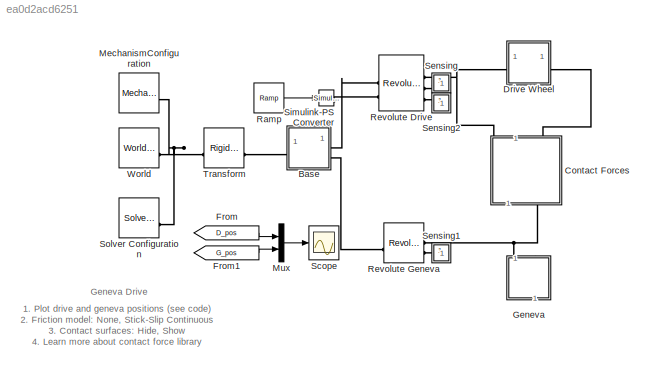
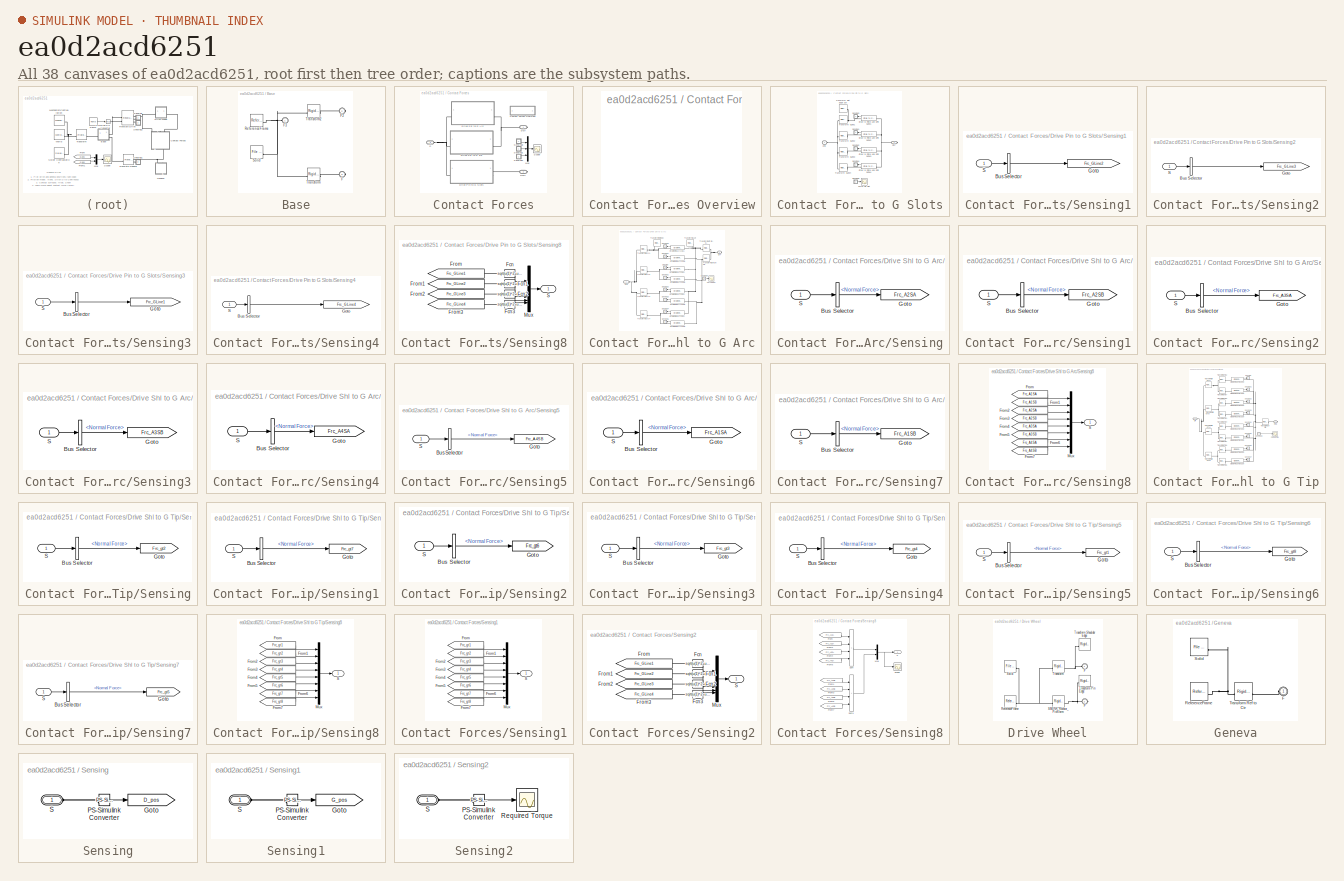
[diagram: thumbnail index - all 38 canvases of the model, root first then tree order]
MODEL slx_ea0d2acd6251
KIND model
CONFIG AbsTol = 1e-5
CONFIG EnableMultiTasking = on
CONFIG FixedStep = auto
CONFIG MaxStep = 1e-2
CONFIG MinStep = auto
CONFIG PostLoadFcn = set_param(bdroot,'IgnoredZcDiagnostic','none')\nwarning off sm:compiler:topologyAnalysis:DanglingBlock
CONFIG RelTol = 1e-4
CONFIG SampleTimeConstraint = Unconstrained
CONFIG SolverName = ode15s
CONFIG StartFcn = tic;
CONFIG StartTime = 0.0
CONFIG StopFcn = Elapsed_Sim_Time = toc;\ndisp(['Elapsed Sim Time = ' num2str(Elapsed_Sim_Time)]);\n
CONFIG StopTime = 30
BLOCK [SubSystem] Base
BLOCK [PMIOPort] Base/F
  Port = 3
  Side = Right
BLOCK [PMIOPort] Base/F2
  Port = 2
  Side = Right
BLOCK [PMIOPort] Base/F3
  Side = Left
BLOCK [Reference] Base/ReferenceFrame  REF=sm_lib/Frames and
Transforms/Reference
Frame
  SourceBlock = sm_lib/Frames and\nTransforms/Reference\nFrame
  SourceType = Reference\nFrame
BLOCK [Reference] Base/Solid  REF=sm_lib/Body Elements/File Solid
  SourceBlock = sm_lib/Body Elements/File Solid
  SourceType = File Solid
BLOCK [Reference] Base/Transform  REF=sm_lib/Frames and
Transforms/Rigid
Transform
  SourceBlock = sm_lib/Frames and\nTransforms/Rigid\nTransform
  SourceType = Rigid\nTransform
BLOCK [Reference] Base/Transform2  REF=sm_lib/Frames and
Transforms/Rigid
Transform
  SourceBlock = sm_lib/Frames and\nTransforms/Rigid\nTransform
  SourceType = Rigid\nTransform
BLOCK [SubSystem] Contact Forces
  NameLocation = right
BLOCK [SubSystem] Contact Forces/Contact Forces Overview
  OpenFcn = web(which('Geneva_Drive_Contact_Forces.html'));
BLOCK [PMIOPort] Contact Forces/Dctr
  NameLocation = top
  Side = Right
BLOCK [PMIOPort] Contact Forces/Dpin
  NameLocation = top
  Port = 2
  Side = Right
BLOCK [SubSystem] Contact Forces/Drive Pin to G Slots
BLOCK [PMIOPort] Contact Forces/Drive Pin to G Slots/CirF
  Port = 2
  Side = Right
BLOCK [Reference] Contact Forces/Drive Pin to G Slots/Circle to Finite Line DPin GLine1  REF=Contact_Forces_Lib/2D/Circle to Finite Line Force
  SourceBlock = Contact_Forces_Lib/2D/Circle to Finite Line Force
  SourceProductName = Simscape Multibody Contact Forces Library
  SourceType = Circle on Finite Line Force
BLOCK [Reference] Contact Forces/Drive Pin to G Slots/Circle to Finite Line DPin GLine2  REF=Contact_Forces_Lib/2D/Circle to Finite Line Force
  SourceBlock = Contact_Forces_Lib/2D/Circle to Finite Line Force
  SourceProductName = Simscape Multibody Contact Forces Library
  SourceType = Circle on Finite Line Force
BLOCK [Reference] Contact Forces/Drive Pin to G Slots/Circle to Finite Line DPin GLine3  REF=Contact_Forces_Lib/2D/Circle to Finite Line Force
  SourceBlock = Contact_Forces_Lib/2D/Circle to Finite Line Force
  SourceProductName = Simscape Multibody Contact Forces Library
  SourceType = Circle on Finite Line Force
BLOCK [Reference] Contact Forces/Drive Pin to G Slots/Circle to Finite Line DPin GLine4  REF=Contact_Forces_Lib/2D/Circle to Finite Line Force
  SourceBlock = Contact_Forces_Lib/2D/Circle to Finite Line Force
  SourceProductName = Simscape Multibody Contact Forces Library
  SourceType = Circle on Finite Line Force
BLOCK [Scope] Contact Forces/Drive Pin to G Slots/Force Pin Slot
  Floating = off
  NumInputPorts = 1
  ScopeSpecificationString = Simulink.scopes.TimeScopeBlockCfg('CurrentConfiguration', extmgr.ConfigurationSet(extmgr.Configuration('Core','General UI',true),extmgr.Configuration('Core','Source UI',true),extmgr.Configuration('Sources','WiredSimulink',true,'DataLoggingSaveFormat','StructureWithTime','DataLoggingDecimation','1','DataLoggingDecimateData',true),extmgr.Configuration('Visuals','Time Domain',true,'SerializedDisplays...<+1576ch>
BLOCK [PMIOPort] Contact Forces/Drive Pin to G Slots/LinB
  Side = Left
BLOCK [SubSystem] Contact Forces/Drive Pin to G Slots/Sensing1
  NameLocation = top
BLOCK [BusSelector] Contact Forces/Drive Pin to G Slots/Sensing1/Bus Selector
  OutputAsBus = on
  OutputSignals = FCir.Fx,FCir.Fy
BLOCK [Goto] Contact Forces/Drive Pin to G Slots/Sensing1/Goto
  GotoTag = Frc_GLine2
  TagVisibility = global
BLOCK [Inport] Contact Forces/Drive Pin to G Slots/Sensing1/S
BLOCK [SubSystem] Contact Forces/Drive Pin to G Slots/Sensing2
  NameLocation = top
BLOCK [BusSelector] Contact Forces/Drive Pin to G Slots/Sensing2/Bus Selector
  OutputAsBus = on
  OutputSignals = FCir.Fx,FCir.Fy
BLOCK [Goto] Contact Forces/Drive Pin to G Slots/Sensing2/Goto
  GotoTag = Frc_GLine3
  TagVisibility = global
BLOCK [Inport] Contact Forces/Drive Pin to G Slots/Sensing2/S
BLOCK [SubSystem] Contact Forces/Drive Pin to G Slots/Sensing3
  NameLocation = top
BLOCK [BusSelector] Contact Forces/Drive Pin to G Slots/Sensing3/Bus Selector
  OutputAsBus = on
  OutputSignals = FCir.Fx,FCir.Fy
BLOCK [Goto] Contact Forces/Drive Pin to G Slots/Sensing3/Goto
  GotoTag = Frc_GLine1
  TagVisibility = global
BLOCK [Inport] Contact Forces/Drive Pin to G Slots/Sensing3/S
BLOCK [SubSystem] Contact Forces/Drive Pin to G Slots/Sensing4
  NameLocation = top
BLOCK [BusSelector] Contact Forces/Drive Pin to G Slots/Sensing4/Bus Selector
  OutputAsBus = on
  OutputSignals = FCir.Fx,FCir.Fy
BLOCK [Goto] Contact Forces/Drive Pin to G Slots/Sensing4/Goto
  GotoTag = Frc_GLine4
  TagVisibility = global
BLOCK [Inport] Contact Forces/Drive Pin to G Slots/Sensing4/S
BLOCK [SubSystem] Contact Forces/Drive Pin to G Slots/Sensing8
BLOCK [Fcn] Contact Forces/Drive Pin to G Slots/Sensing8/Fcn
  Expr = sqrt(u(1)^2+u(2)^2)
BLOCK [Fcn] Contact Forces/Drive Pin to G Slots/Sensing8/Fcn1
  Expr = sqrt(u(1)^2+u(2)^2)
BLOCK [Fcn] Contact Forces/Drive Pin to G Slots/Sensing8/Fcn2
  Expr = sqrt(u(1)^2+u(2)^2)
BLOCK [Fcn] Contact Forces/Drive Pin to G Slots/Sensing8/Fcn3
  Expr = sqrt(u(1)^2+u(2)^2)
BLOCK [From] Contact Forces/Drive Pin to G Slots/Sensing8/From
  GotoTag = Frc_GLine1
  TagVisibility = global
BLOCK [From] Contact Forces/Drive Pin to G Slots/Sensing8/From1
  GotoTag = Frc_GLine2
  TagVisibility = global
BLOCK [From] Contact Forces/Drive Pin to G Slots/Sensing8/From2
  GotoTag = Frc_GLine3
  TagVisibility = global
BLOCK [From] Contact Forces/Drive Pin to G Slots/Sensing8/From3
  GotoTag = Frc_GLine4
  TagVisibility = global
BLOCK [Mux] Contact Forces/Drive Pin to G Slots/Sensing8/Mux
  DisplayOption = bar
BLOCK [Outport] Contact Forces/Drive Pin to G Slots/Sensing8/S
  VectorParamsAs1DForOutWhenUnconnected = off
BLOCK [Reference] Contact Forces/Drive Pin to G Slots/Transform GLine1  REF=sm_lib/Frames and
Transforms/Rigid
Transform
  SourceBlock = sm_lib/Frames and\nTransforms/Rigid\nTransform
  SourceType = Rigid\nTransform
BLOCK [Reference] Contact Forces/Drive Pin to G Slots/Transform GLine2  REF=sm_lib/Frames and
Transforms/Rigid
Transform
  SourceBlock = sm_lib/Frames and\nTransforms/Rigid\nTransform
  SourceType = Rigid\nTransform
BLOCK [Reference] Contact Forces/Drive Pin to G Slots/Transform GLine3  REF=sm_lib/Frames and
Transforms/Rigid
Transform
  SourceBlock = sm_lib/Frames and\nTransforms/Rigid\nTransform
  SourceType = Rigid\nTransform
BLOCK [Reference] Contact Forces/Drive Pin to G Slots/Transform GLine4  REF=sm_lib/Frames and
Transforms/Rigid
Transform
  SourceBlock = sm_lib/Frames and\nTransforms/Rigid\nTransform
  SourceType = Rigid\nTransform
BLOCK [Reference] Contact Forces/Drive Pin to G Slots/Transform Slot Edge SW  REF=sm_lib/Frames and
Transforms/Rigid
Transform
  NameLocation = top
  SourceBlock = sm_lib/Frames and\nTransforms/Rigid\nTransform
  SourceType = Rigid\nTransform
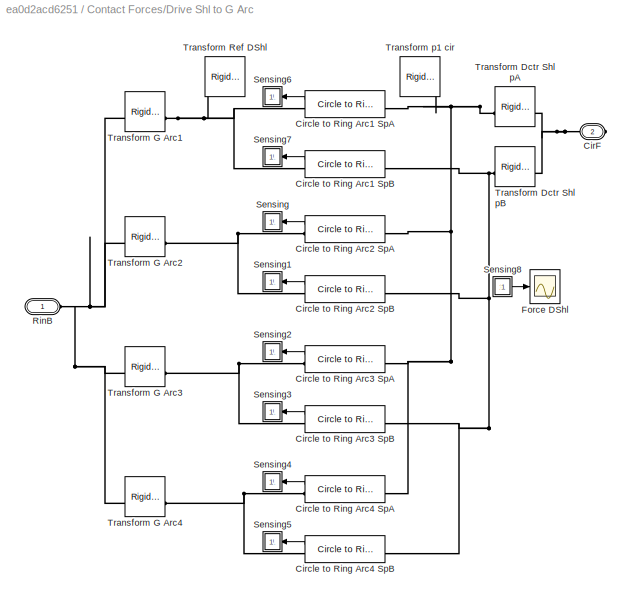
BLOCK [SubSystem] Contact Forces/Drive Shl to G Arc
BLOCK [PMIOPort] Contact Forces/Drive Shl to G Arc/CirF
  NameLocation = top
  Port = 2
  Side = Right
BLOCK [Reference] Contact Forces/Drive Shl to G Arc/Circle to Ring Arc1 SpA   REF=Contact_Forces_Lib/2D/Circle to Ring Force
  SourceBlock = Contact_Forces_Lib/2D/Circle to Ring Force
  SourceProductName = Simscape Multibody Contact Forces Library
  SourceType = Circle to Ring Force
BLOCK [Reference] Contact Forces/Drive Shl to G Arc/Circle to Ring Arc1 SpB  REF=Contact_Forces_Lib/2D/Circle to Ring Force
  SourceBlock = Contact_Forces_Lib/2D/Circle to Ring Force
  SourceProductName = Simscape Multibody Contact Forces Library
  SourceType = Circle to Ring Force
BLOCK [Reference] Contact Forces/Drive Shl to G Arc/Circle to Ring Arc2 SpA  REF=Contact_Forces_Lib/2D/Circle to Ring Force
  SourceBlock = Contact_Forces_Lib/2D/Circle to Ring Force
  SourceProductName = Simscape Multibody Contact Forces Library
  SourceType = Circle to Ring Force
BLOCK [Reference] Contact Forces/Drive Shl to G Arc/Circle to Ring Arc2 SpB  REF=Contact_Forces_Lib/2D/Circle to Ring Force
  SourceBlock = Contact_Forces_Lib/2D/Circle to Ring Force
  SourceProductName = Simscape Multibody Contact Forces Library
  SourceType = Circle to Ring Force
BLOCK [Reference] Contact Forces/Drive Shl to G Arc/Circle to Ring Arc3 SpA  REF=Contact_Forces_Lib/2D/Circle to Ring Force
  SourceBlock = Contact_Forces_Lib/2D/Circle to Ring Force
  SourceProductName = Simscape Multibody Contact Forces Library
  SourceType = Circle to Ring Force
BLOCK [Reference] Contact Forces/Drive Shl to G Arc/Circle to Ring Arc3 SpB  REF=Contact_Forces_Lib/2D/Circle to Ring Force
  SourceBlock = Contact_Forces_Lib/2D/Circle to Ring Force
  SourceProductName = Simscape Multibody Contact Forces Library
  SourceType = Circle to Ring Force
BLOCK [Reference] Contact Forces/Drive Shl to G Arc/Circle to Ring Arc4 SpA  REF=Contact_Forces_Lib/2D/Circle to Ring Force
  SourceBlock = Contact_Forces_Lib/2D/Circle to Ring Force
  SourceProductName = Simscape Multibody Contact Forces Library
  SourceType = Circle to Ring Force
BLOCK [Reference] Contact Forces/Drive Shl to G Arc/Circle to Ring Arc4 SpB  REF=Contact_Forces_Lib/2D/Circle to Ring Force
  SourceBlock = Contact_Forces_Lib/2D/Circle to Ring Force
  SourceProductName = Simscape Multibody Contact Forces Library
  SourceType = Circle to Ring Force
BLOCK [Scope] Contact Forces/Drive Shl to G Arc/Force DShl
  Floating = off
  NumInputPorts = 1
  ScopeSpecificationString = Simulink.scopes.TimeScopeBlockCfg('CurrentConfiguration', extmgr.ConfigurationSet(extmgr.Configuration('Core','General UI',true),extmgr.Configuration('Core','Source UI',true),extmgr.Configuration('Sources','WiredSimulink',true,'DataLoggingVariableName','ScopeData4','DataLoggingSaveFormat','StructureWithTime','DataLoggingDecimation','1','DataLoggingDecimateData',true),extmgr.Configuration('Visuals'...<+1666ch>
BLOCK [PMIOPort] Contact Forces/Drive Shl to G Arc/RinB
  Side = Left
BLOCK [SubSystem] Contact Forces/Drive Shl to G Arc/Sensing
  NameLocation = top
BLOCK [BusSelector] Contact Forces/Drive Shl to G Arc/Sensing/Bus Selector
  OutputSignals = Normal Force
BLOCK [Goto] Contact Forces/Drive Shl to G Arc/Sensing/Goto
  GotoTag = Frc_A2SA
  TagVisibility = global
BLOCK [Inport] Contact Forces/Drive Shl to G Arc/Sensing/S
BLOCK [SubSystem] Contact Forces/Drive Shl to G Arc/Sensing1
  NameLocation = top
BLOCK [BusSelector] Contact Forces/Drive Shl to G Arc/Sensing1/Bus Selector
  OutputSignals = Normal Force
BLOCK [Goto] Contact Forces/Drive Shl to G Arc/Sensing1/Goto
  GotoTag = Frc_A2SB
  TagVisibility = global
BLOCK [Inport] Contact Forces/Drive Shl to G Arc/Sensing1/S
BLOCK [SubSystem] Contact Forces/Drive Shl to G Arc/Sensing2
  NameLocation = top
BLOCK [BusSelector] Contact Forces/Drive Shl to G Arc/Sensing2/Bus Selector
  OutputSignals = Normal Force
BLOCK [Goto] Contact Forces/Drive Shl to G Arc/Sensing2/Goto
  GotoTag = Frc_A3SA
  TagVisibility = global
BLOCK [Inport] Contact Forces/Drive Shl to G Arc/Sensing2/S
BLOCK [SubSystem] Contact Forces/Drive Shl to G Arc/Sensing3
  NameLocation = top
BLOCK [BusSelector] Contact Forces/Drive Shl to G Arc/Sensing3/Bus Selector
  OutputSignals = Normal Force
BLOCK [Goto] Contact Forces/Drive Shl to G Arc/Sensing3/Goto
  GotoTag = Frc_A3SB
  TagVisibility = global
BLOCK [Inport] Contact Forces/Drive Shl to G Arc/Sensing3/S
BLOCK [SubSystem] Contact Forces/Drive Shl to G Arc/Sensing4
  NameLocation = top
BLOCK [BusSelector] Contact Forces/Drive Shl to G Arc/Sensing4/Bus Selector
  OutputSignals = Normal Force
BLOCK [Goto] Contact Forces/Drive Shl to G Arc/Sensing4/Goto
  GotoTag = Frc_A4SA
  TagVisibility = global
BLOCK [Inport] Contact Forces/Drive Shl to G Arc/Sensing4/S
BLOCK [SubSystem] Contact Forces/Drive Shl to G Arc/Sensing5
  NameLocation = top
BLOCK [BusSelector] Contact Forces/Drive Shl to G Arc/Sensing5/Bus Selector
  OutputSignals = Normal Force
BLOCK [Goto] Contact Forces/Drive Shl to G Arc/Sensing5/Goto
  GotoTag = Frc_A4SB
  TagVisibility = global
BLOCK [Inport] Contact Forces/Drive Shl to G Arc/Sensing5/S
BLOCK [SubSystem] Contact Forces/Drive Shl to G Arc/Sensing6
  NameLocation = top
BLOCK [BusSelector] Contact Forces/Drive Shl to G Arc/Sensing6/Bus Selector
  OutputSignals = Normal Force
BLOCK [Goto] Contact Forces/Drive Shl to G Arc/Sensing6/Goto
  GotoTag = Frc_A1SA
  TagVisibility = global
BLOCK [Inport] Contact Forces/Drive Shl to G Arc/Sensing6/S
BLOCK [SubSystem] Contact Forces/Drive Shl to G Arc/Sensing7
  NameLocation = top
BLOCK [BusSelector] Contact Forces/Drive Shl to G Arc/Sensing7/Bus Selector
  OutputSignals = Normal Force
BLOCK [Goto] Contact Forces/Drive Shl to G Arc/Sensing7/Goto
  GotoTag = Frc_A1SB
  TagVisibility = global
BLOCK [Inport] Contact Forces/Drive Shl to G Arc/Sensing7/S
BLOCK [SubSystem] Contact Forces/Drive Shl to G Arc/Sensing8
BLOCK [From] Contact Forces/Drive Shl to G Arc/Sensing8/From
  GotoTag = Frc_A1SA
  TagVisibility = global
BLOCK [From] Contact Forces/Drive Shl to G Arc/Sensing8/From1
  GotoTag = Frc_A1SB
  TagVisibility = global
BLOCK [From] Contact Forces/Drive Shl to G Arc/Sensing8/From2
  GotoTag = Frc_A2SA
  TagVisibility = global
BLOCK [From] Contact Forces/Drive Shl to G Arc/Sensing8/From3
  GotoTag = Frc_A2SB
  TagVisibility = global
BLOCK [From] Contact Forces/Drive Shl to G Arc/Sensing8/From4
  GotoTag = Frc_A3SA
  TagVisibility = global
BLOCK [From] Contact Forces/Drive Shl to G Arc/Sensing8/From5
  GotoTag = Frc_A3SB
  TagVisibility = global
BLOCK [From] Contact Forces/Drive Shl to G Arc/Sensing8/From6
  GotoTag = Frc_A4SA
  TagVisibility = global
BLOCK [From] Contact Forces/Drive Shl to G Arc/Sensing8/From7
  GotoTag = Frc_A4SB
  TagVisibility = global
BLOCK [Mux] Contact Forces/Drive Shl to G Arc/Sensing8/Mux
  DisplayOption = bar
  Inputs = 8
BLOCK [Outport] Contact Forces/Drive Shl to G Arc/Sensing8/S
  VectorParamsAs1DForOutWhenUnconnected = off
BLOCK [Reference] Contact Forces/Drive Shl to G Arc/Transform Dctr Shl pA  REF=sm_lib/Frames and
Transforms/Rigid
Transform
  NameLocation = top
  SourceBlock = sm_lib/Frames and\nTransforms/Rigid\nTransform
  SourceType = Rigid\nTransform
BLOCK [Reference] Contact Forces/Drive Shl to G Arc/Transform Dctr Shl pB  REF=sm_lib/Frames and
Transforms/Rigid
Transform
  SourceBlock = sm_lib/Frames and\nTransforms/Rigid\nTransform
  SourceType = Rigid\nTransform
BLOCK [Reference] Contact Forces/Drive Shl to G Arc/Transform G Arc1  REF=sm_lib/Frames and
Transforms/Rigid
Transform
  SourceBlock = sm_lib/Frames and\nTransforms/Rigid\nTransform
  SourceType = Rigid\nTransform
BLOCK [Reference] Contact Forces/Drive Shl to G Arc/Transform G Arc2  REF=sm_lib/Frames and
Transforms/Rigid
Transform
  SourceBlock = sm_lib/Frames and\nTransforms/Rigid\nTransform
  SourceType = Rigid\nTransform
BLOCK [Reference] Contact Forces/Drive Shl to G Arc/Transform G Arc3  REF=sm_lib/Frames and
Transforms/Rigid
Transform
  SourceBlock = sm_lib/Frames and\nTransforms/Rigid\nTransform
  SourceType = Rigid\nTransform
BLOCK [Reference] Contact Forces/Drive Shl to G Arc/Transform G Arc4  REF=sm_lib/Frames and
Transforms/Rigid
Transform
  SourceBlock = sm_lib/Frames and\nTransforms/Rigid\nTransform
  SourceType = Rigid\nTransform
BLOCK [Reference] Contact Forces/Drive Shl to G Arc/Transform Ref DShl  REF=sm_lib/Frames and
Transforms/Rigid
Transform
  NameLocation = top
  SourceBlock = sm_lib/Frames and\nTransforms/Rigid\nTransform
  SourceType = Rigid\nTransform
BLOCK [Reference] Contact Forces/Drive Shl to G Arc/Transform p1 cir  REF=sm_lib/Frames and
Transforms/Rigid
Transform
  NameLocation = top
  SourceBlock = sm_lib/Frames and\nTransforms/Rigid\nTransform
  SourceType = Rigid\nTransform
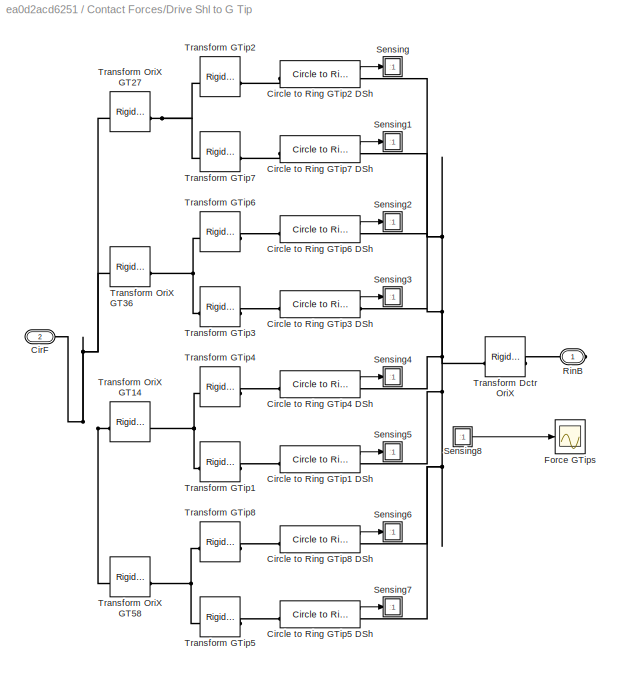
BLOCK [SubSystem] Contact Forces/Drive Shl to G Tip
BLOCK [PMIOPort] Contact Forces/Drive Shl to G Tip/CirF
  Port = 2
  Side = Left
BLOCK [Reference] Contact Forces/Drive Shl to G Tip/Circle to Ring GTip1 DSh  REF=Contact_Forces_Lib/2D/Circle to Ring Force
  SourceBlock = Contact_Forces_Lib/2D/Circle to Ring Force
  SourceProductName = Simscape Multibody Contact Forces Library
  SourceType = Circle to Ring Force
BLOCK [Reference] Contact Forces/Drive Shl to G Tip/Circle to Ring GTip2 DSh  REF=Contact_Forces_Lib/2D/Circle to Ring Force
  SourceBlock = Contact_Forces_Lib/2D/Circle to Ring Force
  SourceProductName = Simscape Multibody Contact Forces Library
  SourceType = Circle to Ring Force
BLOCK [Reference] Contact Forces/Drive Shl to G Tip/Circle to Ring GTip3 DSh  REF=Contact_Forces_Lib/2D/Circle to Ring Force
  SourceBlock = Contact_Forces_Lib/2D/Circle to Ring Force
  SourceProductName = Simscape Multibody Contact Forces Library
  SourceType = Circle to Ring Force
BLOCK [Reference] Contact Forces/Drive Shl to G Tip/Circle to Ring GTip4 DSh  REF=Contact_Forces_Lib/2D/Circle to Ring Force
  SourceBlock = Contact_Forces_Lib/2D/Circle to Ring Force
  SourceProductName = Simscape Multibody Contact Forces Library
  SourceType = Circle to Ring Force
BLOCK [Reference] Contact Forces/Drive Shl to G Tip/Circle to Ring GTip5 DSh  REF=Contact_Forces_Lib/2D/Circle to Ring Force
  SourceBlock = Contact_Forces_Lib/2D/Circle to Ring Force
  SourceProductName = Simscape Multibody Contact Forces Library
  SourceType = Circle to Ring Force
BLOCK [Reference] Contact Forces/Drive Shl to G Tip/Circle to Ring GTip6 DSh  REF=Contact_Forces_Lib/2D/Circle to Ring Force
  SourceBlock = Contact_Forces_Lib/2D/Circle to Ring Force
  SourceProductName = Simscape Multibody Contact Forces Library
  SourceType = Circle to Ring Force
BLOCK [Reference] Contact Forces/Drive Shl to G Tip/Circle to Ring GTip7 DSh  REF=Contact_Forces_Lib/2D/Circle to Ring Force
  SourceBlock = Contact_Forces_Lib/2D/Circle to Ring Force
  SourceProductName = Simscape Multibody Contact Forces Library
  SourceType = Circle to Ring Force
BLOCK [Reference] Contact Forces/Drive Shl to G Tip/Circle to Ring GTip8 DSh  REF=Contact_Forces_Lib/2D/Circle to Ring Force
  SourceBlock = Contact_Forces_Lib/2D/Circle to Ring Force
  SourceProductName = Simscape Multibody Contact Forces Library
  SourceType = Circle to Ring Force
BLOCK [Scope] Contact Forces/Drive Shl to G Tip/Force GTips
  Floating = off
  NumInputPorts = 1
  ScopeSpecificationString = Simulink.scopes.TimeScopeBlockCfg('CurrentConfiguration', extmgr.ConfigurationSet(extmgr.Configuration('Core','General UI',true),extmgr.Configuration('Core','Source UI',true),extmgr.Configuration('Sources','WiredSimulink',true,'DataLoggingVariableName','ScopeData2','DataLoggingSaveFormat','StructureWithTime','DataLoggingDecimation','1','DataLoggingDecimateData',true),extmgr.Configuration('Visuals'...<+1666ch>
BLOCK [PMIOPort] Contact Forces/Drive Shl to G Tip/RinB
  Side = Right
BLOCK [SubSystem] Contact Forces/Drive Shl to G Tip/Sensing
BLOCK [BusSelector] Contact Forces/Drive Shl to G Tip/Sensing/Bus Selector
  OutputSignals = Normal Force
BLOCK [Goto] Contact Forces/Drive Shl to G Tip/Sensing/Goto
  GotoTag = Frc_gt2
  TagVisibility = global
BLOCK [Inport] Contact Forces/Drive Shl to G Tip/Sensing/S
BLOCK [SubSystem] Contact Forces/Drive Shl to G Tip/Sensing1
BLOCK [BusSelector] Contact Forces/Drive Shl to G Tip/Sensing1/Bus Selector
  OutputSignals = Normal Force
BLOCK [Goto] Contact Forces/Drive Shl to G Tip/Sensing1/Goto
  GotoTag = Frc_gt7
  TagVisibility = global
BLOCK [Inport] Contact Forces/Drive Shl to G Tip/Sensing1/S
BLOCK [SubSystem] Contact Forces/Drive Shl to G Tip/Sensing2
BLOCK [BusSelector] Contact Forces/Drive Shl to G Tip/Sensing2/Bus Selector
  OutputSignals = Normal Force
BLOCK [Goto] Contact Forces/Drive Shl to G Tip/Sensing2/Goto
  GotoTag = Frc_gt6
  TagVisibility = global
BLOCK [Inport] Contact Forces/Drive Shl to G Tip/Sensing2/S
BLOCK [SubSystem] Contact Forces/Drive Shl to G Tip/Sensing3
BLOCK [BusSelector] Contact Forces/Drive Shl to G Tip/Sensing3/Bus Selector
  OutputSignals = Normal Force
BLOCK [Goto] Contact Forces/Drive Shl to G Tip/Sensing3/Goto
  GotoTag = Frc_gt3
  TagVisibility = global
BLOCK [Inport] Contact Forces/Drive Shl to G Tip/Sensing3/S
BLOCK [SubSystem] Contact Forces/Drive Shl to G Tip/Sensing4
BLOCK [BusSelector] Contact Forces/Drive Shl to G Tip/Sensing4/Bus Selector
  OutputSignals = Normal Force
BLOCK [Goto] Contact Forces/Drive Shl to G Tip/Sensing4/Goto
  GotoTag = Frc_gt4
  TagVisibility = global
BLOCK [Inport] Contact Forces/Drive Shl to G Tip/Sensing4/S
BLOCK [SubSystem] Contact Forces/Drive Shl to G Tip/Sensing5
BLOCK [BusSelector] Contact Forces/Drive Shl to G Tip/Sensing5/Bus Selector
  OutputSignals = Normal Force
BLOCK [Goto] Contact Forces/Drive Shl to G Tip/Sensing5/Goto
  GotoTag = Frc_gt1
  TagVisibility = global
BLOCK [Inport] Contact Forces/Drive Shl to G Tip/Sensing5/S
BLOCK [SubSystem] Contact Forces/Drive Shl to G Tip/Sensing6
BLOCK [BusSelector] Contact Forces/Drive Shl to G Tip/Sensing6/Bus Selector
  OutputSignals = Normal Force
BLOCK [Goto] Contact Forces/Drive Shl to G Tip/Sensing6/Goto
  GotoTag = Frc_gt8
  TagVisibility = global
BLOCK [Inport] Contact Forces/Drive Shl to G Tip/Sensing6/S
BLOCK [SubSystem] Contact Forces/Drive Shl to G Tip/Sensing7
BLOCK [BusSelector] Contact Forces/Drive Shl to G Tip/Sensing7/Bus Selector
  OutputSignals = Normal Force
BLOCK [Goto] Contact Forces/Drive Shl to G Tip/Sensing7/Goto
  GotoTag = Frc_gt5
  TagVisibility = global
BLOCK [Inport] Contact Forces/Drive Shl to G Tip/Sensing7/S
BLOCK [SubSystem] Contact Forces/Drive Shl to G Tip/Sensing8
BLOCK [From] Contact Forces/Drive Shl to G Tip/Sensing8/From
  GotoTag = Frc_gt1
  TagVisibility = global
BLOCK [From] Contact Forces/Drive Shl to G Tip/Sensing8/From1
  GotoTag = Frc_gt2
  TagVisibility = global
BLOCK [From] Contact Forces/Drive Shl to G Tip/Sensing8/From2
  GotoTag = Frc_gt3
  TagVisibility = global
BLOCK [From] Contact Forces/Drive Shl to G Tip/Sensing8/From3
  GotoTag = Frc_gt4
  TagVisibility = global
BLOCK [From] Contact Forces/Drive Shl to G Tip/Sensing8/From4
  GotoTag = Frc_gt5
  TagVisibility = global
BLOCK [From] Contact Forces/Drive Shl to G Tip/Sensing8/From5
  GotoTag = Frc_gt6
  TagVisibility = global
BLOCK [From] Contact Forces/Drive Shl to G Tip/Sensing8/From6
  GotoTag = Frc_gt7
  TagVisibility = global
BLOCK [From] Contact Forces/Drive Shl to G Tip/Sensing8/From7
  GotoTag = Frc_gt8
  TagVisibility = global
BLOCK [Mux] Contact Forces/Drive Shl to G Tip/Sensing8/Mux
  DisplayOption = bar
  Inputs = 8
BLOCK [Outport] Contact Forces/Drive Shl to G Tip/Sensing8/S
  VectorParamsAs1DForOutWhenUnconnected = off
BLOCK [Reference] Contact Forces/Drive Shl to G Tip/Transform Dctr OriX  REF=sm_lib/Frames and
Transforms/Rigid
Transform
  SourceBlock = sm_lib/Frames and\nTransforms/Rigid\nTransform
  SourceType = Rigid\nTransform
BLOCK [Reference] Contact Forces/Drive Shl to G Tip/Transform GTip1  REF=sm_lib/Frames and
Transforms/Rigid
Transform
  SourceBlock = sm_lib/Frames and\nTransforms/Rigid\nTransform
  SourceType = Rigid\nTransform
BLOCK [Reference] Contact Forces/Drive Shl to G Tip/Transform GTip2  REF=sm_lib/Frames and
Transforms/Rigid
Transform
  SourceBlock = sm_lib/Frames and\nTransforms/Rigid\nTransform
  SourceType = Rigid\nTransform
BLOCK [Reference] Contact Forces/Drive Shl to G Tip/Transform GTip3  REF=sm_lib/Frames and
Transforms/Rigid
Transform
  SourceBlock = sm_lib/Frames and\nTransforms/Rigid\nTransform
  SourceType = Rigid\nTransform
BLOCK [Reference] Contact Forces/Drive Shl to G Tip/Transform GTip4  REF=sm_lib/Frames and
Transforms/Rigid
Transform
  SourceBlock = sm_lib/Frames and\nTransforms/Rigid\nTransform
  SourceType = Rigid\nTransform
BLOCK [Reference] Contact Forces/Drive Shl to G Tip/Transform GTip5  REF=sm_lib/Frames and
Transforms/Rigid
Transform
  SourceBlock = sm_lib/Frames and\nTransforms/Rigid\nTransform
  SourceType = Rigid\nTransform
BLOCK [Reference] Contact Forces/Drive Shl to G Tip/Transform GTip6  REF=sm_lib/Frames and
Transforms/Rigid
Transform
  SourceBlock = sm_lib/Frames and\nTransforms/Rigid\nTransform
  SourceType = Rigid\nTransform
BLOCK [Reference] Contact Forces/Drive Shl to G Tip/Transform GTip7  REF=sm_lib/Frames and
Transforms/Rigid
Transform
  SourceBlock = sm_lib/Frames and\nTransforms/Rigid\nTransform
  SourceType = Rigid\nTransform
BLOCK [Reference] Contact Forces/Drive Shl to G Tip/Transform GTip8  REF=sm_lib/Frames and
Transforms/Rigid
Transform
  SourceBlock = sm_lib/Frames and\nTransforms/Rigid\nTransform
  SourceType = Rigid\nTransform
BLOCK [Reference] Contact Forces/Drive Shl to G Tip/Transform OriX GT14  REF=sm_lib/Frames and
Transforms/Rigid
Transform
  SourceBlock = sm_lib/Frames and\nTransforms/Rigid\nTransform
  SourceType = Rigid\nTransform
BLOCK [Reference] Contact Forces/Drive Shl to G Tip/Transform OriX GT27  REF=sm_lib/Frames and
Transforms/Rigid
Transform
  SourceBlock = sm_lib/Frames and\nTransforms/Rigid\nTransform
  SourceType = Rigid\nTransform
BLOCK [Reference] Contact Forces/Drive Shl to G Tip/Transform OriX GT36  REF=sm_lib/Frames and
Transforms/Rigid
Transform
  SourceBlock = sm_lib/Frames and\nTransforms/Rigid\nTransform
  SourceType = Rigid\nTransform
BLOCK [Reference] Contact Forces/Drive Shl to G Tip/Transform OriX GT58  REF=sm_lib/Frames and
Transforms/Rigid
Transform
  SourceBlock = sm_lib/Frames and\nTransforms/Rigid\nTransform
  SourceType = Rigid\nTransform
BLOCK [PMIOPort] Contact Forces/G
  Port = 3
  Side = Left
BLOCK [Mux] Contact Forces/Mux
  DisplayOption = bar
  Inputs = 3
BLOCK [Scope] Contact Forces/Scope
  Floating = off
  NumInputPorts = 1
  ScopeSpecificationString = Simulink.scopes.TimeScopeBlockCfg('CurrentConfiguration', extmgr.ConfigurationSet(extmgr.Configuration('Core','General UI',true),extmgr.Configuration('Core','Source UI',true),extmgr.Configuration('Sources','WiredSimulink',true,'DataLoggingVariableName','ScopeData5','DataLoggingSaveFormat','StructureWithTime','DataLoggingDecimation','1','DataLoggingDecimateData',true),extmgr.Configuration('Visuals'...<+1694ch>
BLOCK [SubSystem] Contact Forces/Sensing1
BLOCK [From] Contact Forces/Sensing1/From
  GotoTag = Frc_gt1
  TagVisibility = global
BLOCK [From] Contact Forces/Sensing1/From1
  GotoTag = Frc_gt2
  TagVisibility = global
BLOCK [From] Contact Forces/Sensing1/From2
  GotoTag = Frc_gt3
  TagVisibility = global
BLOCK [From] Contact Forces/Sensing1/From3
  GotoTag = Frc_gt4
  TagVisibility = global
BLOCK [From] Contact Forces/Sensing1/From4
  GotoTag = Frc_gt5
  TagVisibility = global
BLOCK [From] Contact Forces/Sensing1/From5
  GotoTag = Frc_gt6
  TagVisibility = global
BLOCK [From] Contact Forces/Sensing1/From6
  GotoTag = Frc_gt7
  TagVisibility = global
BLOCK [From] Contact Forces/Sensing1/From7
  GotoTag = Frc_gt8
  TagVisibility = global
BLOCK [Mux] Contact Forces/Sensing1/Mux
  DisplayOption = bar
  Inputs = 8
BLOCK [Outport] Contact Forces/Sensing1/S
  VectorParamsAs1DForOutWhenUnconnected = off
BLOCK [SubSystem] Contact Forces/Sensing2
BLOCK [Fcn] Contact Forces/Sensing2/Fcn
  Expr = sqrt(u(1)^2+u(2)^2)
BLOCK [Fcn] Contact Forces/Sensing2/Fcn1
  Expr = sqrt(u(1)^2+u(2)^2)
BLOCK [Fcn] Contact Forces/Sensing2/Fcn2
  Expr = sqrt(u(1)^2+u(2)^2)
BLOCK [Fcn] Contact Forces/Sensing2/Fcn3
  Expr = sqrt(u(1)^2+u(2)^2)
BLOCK [From] Contact Forces/Sensing2/From
  GotoTag = Frc_GLine1
  TagVisibility = global
BLOCK [From] Contact Forces/Sensing2/From1
  GotoTag = Frc_GLine2
  TagVisibility = global
BLOCK [From] Contact Forces/Sensing2/From2
  GotoTag = Frc_GLine3
  TagVisibility = global
BLOCK [From] Contact Forces/Sensing2/From3
  GotoTag = Frc_GLine4
  TagVisibility = global
BLOCK [Mux] Contact Forces/Sensing2/Mux
  DisplayOption = bar
BLOCK [Outport] Contact Forces/Sensing2/S
  VectorParamsAs1DForOutWhenUnconnected = off
BLOCK [SubSystem] Contact Forces/Sensing8
BLOCK [From] Contact Forces/Sensing8/From
  GotoTag = Frc_A1SA
  TagVisibility = global
BLOCK [From] Contact Forces/Sensing8/From1
  GotoTag = Frc_A1SB
  TagVisibility = global
BLOCK [From] Contact Forces/Sensing8/From2
  GotoTag = Frc_A2SA
  TagVisibility = global
BLOCK [From] Contact Forces/Sensing8/From3
  GotoTag = Frc_A2SB
  TagVisibility = global
BLOCK [From] Contact Forces/Sensing8/From4
  GotoTag = Frc_A3SA
  TagVisibility = global
BLOCK [From] Contact Forces/Sensing8/From5
  GotoTag = Frc_A3SB
  TagVisibility = global
BLOCK [From] Contact Forces/Sensing8/From6
  GotoTag = Frc_A4SA
  TagVisibility = global
BLOCK [From] Contact Forces/Sensing8/From7
  GotoTag = Frc_A4SB
  TagVisibility = global
BLOCK [Mux] Contact Forces/Sensing8/Mux
  DisplayOption = bar
  Inputs = 2
BLOCK [Outport] Contact Forces/Sensing8/S
  VectorParamsAs1DForOutWhenUnconnected = off
BLOCK [Scope] Contact Forces/Sensing8/Scope
  Floating = off
  NumInputPorts = 1
  ScopeSpecificationString = Simulink.scopes.TimeScopeBlockCfg('CurrentConfiguration', extmgr.ConfigurationSet(extmgr.Configuration('Core','General UI',true),extmgr.Configuration('Core','Source UI',true),extmgr.Configuration('Sources','WiredSimulink',true,'DataLoggingVariableName','ScopeData6','DataLoggingSaveFormat','Array','DataLoggingDecimation','1','DataLoggingDecimateData',true),extmgr.Configuration('Visuals','Time Domai...<+1656ch>
BLOCK [Sum] Contact Forces/Sensing8/Sum
  IconShape = rectangular
  Inputs = ++++
BLOCK [Sum] Contact Forces/Sensing8/Sum1
  IconShape = rectangular
  Inputs = ++++
BLOCK [SubSystem] Drive Wheel
  Tag = CustomStyle
BLOCK [PMIOPort] Drive Wheel/F
  Side = Left
BLOCK [PMIOPort] Drive Wheel/P
  Port = 2
  Side = Right
BLOCK [Reference] Drive Wheel/ReferenceFrame  REF=sm_lib/Frames and
Transforms/Reference
Frame
  SourceBlock = sm_lib/Frames and\nTransforms/Reference\nFrame
  SourceType = Reference\nFrame
BLOCK [Reference] Drive Wheel/SMLINK_Rotator_PinXform  REF=sm_lib/Frames and
Transforms/Rigid
Transform
  SourceBlock = sm_lib/Frames and\nTransforms/Rigid\nTransform
  SourceType = Rigid\nTransform
BLOCK [Reference] Drive Wheel/Solid  REF=sm_lib/Body Elements/File Solid
  SourceBlock = sm_lib/Body Elements/File Solid
  SourceType = File Solid
BLOCK [Reference] Drive Wheel/Transform  REF=sm_lib/Frames and
Transforms/Rigid
Transform
  SourceBlock = sm_lib/Frames and\nTransforms/Rigid\nTransform
  SourceType = Rigid\nTransform
BLOCK [Reference] Drive Wheel/Transform Pin Edge  REF=sm_lib/Frames and
Transforms/Rigid
Transform
  SourceBlock = sm_lib/Frames and\nTransforms/Rigid\nTransform
  SourceType = Rigid\nTransform
BLOCK [Reference] Drive Wheel/Transform Shoulder Edge  REF=sm_lib/Frames and
Transforms/Rigid
Transform
  SourceBlock = sm_lib/Frames and\nTransforms/Rigid\nTransform
  SourceType = Rigid\nTransform
BLOCK [From] From
  GotoTag = D_pos
  Tag = CustomStyle
  TagVisibility = global
BLOCK [From] From1
  GotoTag = G_pos
  Tag = CustomStyle
  TagVisibility = global
BLOCK [SubSystem] Geneva
  NameLocation = right
  Tag = CustomStyle
BLOCK [PMIOPort] Geneva/F
  Side = Left
BLOCK [Reference] Geneva/ReferenceFrame  REF=sm_lib/Frames and
Transforms/Reference
Frame
  SourceBlock = sm_lib/Frames and\nTransforms/Reference\nFrame
  SourceType = Reference\nFrame
BLOCK [Reference] Geneva/Solid  REF=sm_lib/Body Elements/File Solid
  SourceBlock = sm_lib/Body Elements/File Solid
  SourceType = File Solid
BLOCK [Reference] Geneva/Transform Ref to Ctr  REF=sm_lib/Frames and
Transforms/Rigid
Transform
  SourceBlock = sm_lib/Frames and\nTransforms/Rigid\nTransform
  SourceType = Rigid\nTransform
BLOCK [Reference] MechanismConfiguration  REF=sm_lib/Utilities/Mechanism
Configuration
  SourceBlock = sm_lib/Utilities/Mechanism\nConfiguration
  SourceType = Mechanism\nConfiguration
BLOCK [Mux] Mux
  DisplayOption = bar
  Inputs = 2
BLOCK [Reference] Ramp  REF=simulink/Sources/Ramp
  SourceBlock = simulink/Sources/Ramp
  SourceType = Ramp
BLOCK [Reference] Revolute Drive  REF=sm_lib/Joints/Revolute Joint
  SourceBlock = sm_lib/Joints/Revolute Joint
  SourceType = Revolute Joint
BLOCK [Reference] Revolute Geneva  REF=sm_lib/Joints/Revolute Joint
  SourceBlock = sm_lib/Joints/Revolute Joint
  SourceType = Revolute Joint
BLOCK [Scope] Scope
  Floating = off
  NumInputPorts = 1
  ScopeSpecificationString = Simulink.scopes.TimeScopeBlockCfg('CurrentConfiguration', extmgr.ConfigurationSet(extmgr.Configuration('Core','General UI',true,'FigureColor',[0.501960784313725 0.501960784313725 0.501960784313725]),extmgr.Configuration('Core','Source UI',true),extmgr.Configuration('Sources','WiredSimulink',true,'DataLoggingVariableName','ScopeData3','DataLoggingSaveFormat','StructureWithTime','DataLoggingDecimati...<+2763ch>
BLOCK [SubSystem] Sensing
  Tag = CustomStyle
BLOCK [Goto] Sensing/Goto
  GotoTag = D_pos
  TagVisibility = global
BLOCK [Reference] Sensing/PS-Simulink Converter  REF=nesl_utility/PS-Simulink
Converter
  SourceBlock = nesl_utility/PS-Simulink\nConverter
  SourceType = PS-Simulink\nConverter
BLOCK [PMIOPort] Sensing/S
  Side = Left
BLOCK [SubSystem] Sensing1
  Tag = CustomStyle
BLOCK [Goto] Sensing1/Goto
  GotoTag = G_pos
  TagVisibility = global
BLOCK [Reference] Sensing1/PS-Simulink Converter  REF=nesl_utility/PS-Simulink
Converter
  SourceBlock = nesl_utility/PS-Simulink\nConverter
  SourceType = PS-Simulink\nConverter
BLOCK [PMIOPort] Sensing1/S
  Side = Left
BLOCK [SubSystem] Sensing2
BLOCK [Reference] Sensing2/PS-Simulink Converter  REF=nesl_utility/PS-Simulink
Converter
  SourceBlock = nesl_utility/PS-Simulink\nConverter
  SourceType = PS-Simulink\nConverter
BLOCK [Scope] Sensing2/Required Torque
  Floating = off
  NumInputPorts = 1
  ScopeSpecificationString = Simulink.scopes.TimeScopeBlockCfg('CurrentConfiguration', extmgr.ConfigurationSet(extmgr.Configuration('Core','General UI',true),extmgr.Configuration('Core','Source UI',true),extmgr.Configuration('Sources','WiredSimulink',true,'DataLoggingVariableName','ScopeData1','DataLoggingSaveFormat','StructureWithTime','DataLoggingDecimation','1','DataLoggingDecimateData',true),extmgr.Configuration('Visuals'...<+1786ch>
BLOCK [PMIOPort] Sensing2/S
  Side = Left
BLOCK [Reference] Simulink-PS Converter  REF=nesl_utility/Simulink-PS
Converter
  SourceBlock = nesl_utility/Simulink-PS\nConverter
  SourceType = Simulink-PS\nConverter
BLOCK [Reference] Solver Configuration  REF=nesl_utility/Solver
Configuration
  SourceBlock = nesl_utility/Solver\nConfiguration
  SourceType = Solver\nConfiguration
BLOCK [Reference] Transform   REF=sm_lib/Frames and
Transforms/Rigid
Transform
  SourceBlock = sm_lib/Frames and\nTransforms/Rigid\nTransform
  SourceType = Rigid\nTransform
BLOCK [Reference] World  REF=sm_lib/Frames and
Transforms/World Frame
  SourceBlock = sm_lib/Frames and\nTransforms/World Frame
  SourceType = World Frame
ANNOTATION (root): 1. Plot drive and geneva positions ( see code ) 2. Friction model: None , Stick-Slip Continuous 3. Contact surfaces: Hide , Show 4. Learn more about contact force library
ANNOTATION (root): Geneva Drive
LINE Contact Forces/Drive Pin to G Slots/Circle to Finite Line DPin GLine1:1 -> Contact Forces/Drive Pin to G Slots/Sensing3:1
LINE Contact Forces/Drive Pin to G Slots/Circle to Finite Line DPin GLine2:1 -> Contact Forces/Drive Pin to G Slots/Sensing1:1
LINE Contact Forces/Drive Pin to G Slots/Circle to Finite Line DPin GLine3:1 -> Contact Forces/Drive Pin to G Slots/Sensing2:1
LINE Contact Forces/Drive Pin to G Slots/Circle to Finite Line DPin GLine4:1 -> Contact Forces/Drive Pin to G Slots/Sensing4:1
LINE Contact Forces/Drive Pin to G Slots/Sensing1/Bus Selector:1 -> Contact Forces/Drive Pin to G Slots/Sensing1/Goto:1
LINE Contact Forces/Drive Pin to G Slots/Sensing1/S:1 -> Contact Forces/Drive Pin to G Slots/Sensing1/Bus Selector:1
LINE Contact Forces/Drive Pin to G Slots/Sensing2/Bus Selector:1 -> Contact Forces/Drive Pin to G Slots/Sensing2/Goto:1
LINE Contact Forces/Drive Pin to G Slots/Sensing2/S:1 -> Contact Forces/Drive Pin to G Slots/Sensing2/Bus Selector:1
LINE Contact Forces/Drive Pin to G Slots/Sensing3/Bus Selector:1 -> Contact Forces/Drive Pin to G Slots/Sensing3/Goto:1
LINE Contact Forces/Drive Pin to G Slots/Sensing3/S:1 -> Contact Forces/Drive Pin to G Slots/Sensing3/Bus Selector:1
LINE Contact Forces/Drive Pin to G Slots/Sensing4/Bus Selector:1 -> Contact Forces/Drive Pin to G Slots/Sensing4/Goto:1
LINE Contact Forces/Drive Pin to G Slots/Sensing4/S:1 -> Contact Forces/Drive Pin to G Slots/Sensing4/Bus Selector:1
LINE Contact Forces/Drive Pin to G Slots/Sensing8/Fcn1:1 -> Contact Forces/Drive Pin to G Slots/Sensing8/Mux:2
LINE Contact Forces/Drive Pin to G Slots/Sensing8/Fcn2:1 -> Contact Forces/Drive Pin to G Slots/Sensing8/Mux:3
LINE Contact Forces/Drive Pin to G Slots/Sensing8/Fcn3:1 -> Contact Forces/Drive Pin to G Slots/Sensing8/Mux:4
LINE Contact Forces/Drive Pin to G Slots/Sensing8/Fcn:1 -> Contact Forces/Drive Pin to G Slots/Sensing8/Mux:1
LINE Contact Forces/Drive Pin to G Slots/Sensing8/From1:1 -> Contact Forces/Drive Pin to G Slots/Sensing8/Fcn1:1
LINE Contact Forces/Drive Pin to G Slots/Sensing8/From2:1 -> Contact Forces/Drive Pin to G Slots/Sensing8/Fcn2:1
LINE Contact Forces/Drive Pin to G Slots/Sensing8/From3:1 -> Contact Forces/Drive Pin to G Slots/Sensing8/Fcn3:1
LINE Contact Forces/Drive Pin to G Slots/Sensing8/From:1 -> Contact Forces/Drive Pin to G Slots/Sensing8/Fcn:1
LINE Contact Forces/Drive Pin to G Slots/Sensing8/Mux:1 -> Contact Forces/Drive Pin to G Slots/Sensing8/S:1
LINE Contact Forces/Drive Pin to G Slots/Sensing8:1 -> Contact Forces/Drive Pin to G Slots/Force Pin Slot:1
LINE Contact Forces/Drive Shl to G Arc/Circle to Ring Arc1 SpA :1 -> Contact Forces/Drive Shl to G Arc/Sensing6:1
LINE Contact Forces/Drive Shl to G Arc/Circle to Ring Arc1 SpB:1 -> Contact Forces/Drive Shl to G Arc/Sensing7:1
LINE Contact Forces/Drive Shl to G Arc/Circle to Ring Arc2 SpA:1 -> Contact Forces/Drive Shl to G Arc/Sensing:1
LINE Contact Forces/Drive Shl to G Arc/Circle to Ring Arc2 SpB:1 -> Contact Forces/Drive Shl to G Arc/Sensing1:1
LINE Contact Forces/Drive Shl to G Arc/Circle to Ring Arc3 SpA:1 -> Contact Forces/Drive Shl to G Arc/Sensing2:1
LINE Contact Forces/Drive Shl to G Arc/Circle to Ring Arc3 SpB:1 -> Contact Forces/Drive Shl to G Arc/Sensing3:1
LINE Contact Forces/Drive Shl to G Arc/Circle to Ring Arc4 SpA:1 -> Contact Forces/Drive Shl to G Arc/Sensing4:1
LINE Contact Forces/Drive Shl to G Arc/Circle to Ring Arc4 SpB:1 -> Contact Forces/Drive Shl to G Arc/Sensing5:1
LINE Contact Forces/Drive Shl to G Arc/Sensing/Bus Selector:1 -> Contact Forces/Drive Shl to G Arc/Sensing/Goto:1
LINE Contact Forces/Drive Shl to G Arc/Sensing/S:1 -> Contact Forces/Drive Shl to G Arc/Sensing/Bus Selector:1
LINE Contact Forces/Drive Shl to G Arc/Sensing1/Bus Selector:1 -> Contact Forces/Drive Shl to G Arc/Sensing1/Goto:1
LINE Contact Forces/Drive Shl to G Arc/Sensing1/S:1 -> Contact Forces/Drive Shl to G Arc/Sensing1/Bus Selector:1
LINE Contact Forces/Drive Shl to G Arc/Sensing2/Bus Selector:1 -> Contact Forces/Drive Shl to G Arc/Sensing2/Goto:1
LINE Contact Forces/Drive Shl to G Arc/Sensing2/S:1 -> Contact Forces/Drive Shl to G Arc/Sensing2/Bus Selector:1
LINE Contact Forces/Drive Shl to G Arc/Sensing3/Bus Selector:1 -> Contact Forces/Drive Shl to G Arc/Sensing3/Goto:1
LINE Contact Forces/Drive Shl to G Arc/Sensing3/S:1 -> Contact Forces/Drive Shl to G Arc/Sensing3/Bus Selector:1
LINE Contact Forces/Drive Shl to G Arc/Sensing4/Bus Selector:1 -> Contact Forces/Drive Shl to G Arc/Sensing4/Goto:1
LINE Contact Forces/Drive Shl to G Arc/Sensing4/S:1 -> Contact Forces/Drive Shl to G Arc/Sensing4/Bus Selector:1
LINE Contact Forces/Drive Shl to G Arc/Sensing5/Bus Selector:1 -> Contact Forces/Drive Shl to G Arc/Sensing5/Goto:1
LINE Contact Forces/Drive Shl to G Arc/Sensing5/S:1 -> Contact Forces/Drive Shl to G Arc/Sensing5/Bus Selector:1
LINE Contact Forces/Drive Shl to G Arc/Sensing6/Bus Selector:1 -> Contact Forces/Drive Shl to G Arc/Sensing6/Goto:1
LINE Contact Forces/Drive Shl to G Arc/Sensing6/S:1 -> Contact Forces/Drive Shl to G Arc/Sensing6/Bus Selector:1
LINE Contact Forces/Drive Shl to G Arc/Sensing7/Bus Selector:1 -> Contact Forces/Drive Shl to G Arc/Sensing7/Goto:1
LINE Contact Forces/Drive Shl to G Arc/Sensing7/S:1 -> Contact Forces/Drive Shl to G Arc/Sensing7/Bus Selector:1
LINE Contact Forces/Drive Shl to G Arc/Sensing8/From1:1 -> Contact Forces/Drive Shl to G Arc/Sensing8/Mux:2
LINE Contact Forces/Drive Shl to G Arc/Sensing8/From2:1 -> Contact Forces/Drive Shl to G Arc/Sensing8/Mux:3
LINE Contact Forces/Drive Shl to G Arc/Sensing8/From3:1 -> Contact Forces/Drive Shl to G Arc/Sensing8/Mux:4
LINE Contact Forces/Drive Shl to G Arc/Sensing8/From4:1 -> Contact Forces/Drive Shl to G Arc/Sensing8/Mux:5
LINE Contact Forces/Drive Shl to G Arc/Sensing8/From5:1 -> Contact Forces/Drive Shl to G Arc/Sensing8/Mux:6
LINE Contact Forces/Drive Shl to G Arc/Sensing8/From6:1 -> Contact Forces/Drive Shl to G Arc/Sensing8/Mux:7
LINE Contact Forces/Drive Shl to G Arc/Sensing8/From7:1 -> Contact Forces/Drive Shl to G Arc/Sensing8/Mux:8
LINE Contact Forces/Drive Shl to G Arc/Sensing8/From:1 -> Contact Forces/Drive Shl to G Arc/Sensing8/Mux:1
LINE Contact Forces/Drive Shl to G Arc/Sensing8/Mux:1 -> Contact Forces/Drive Shl to G Arc/Sensing8/S:1
LINE Contact Forces/Drive Shl to G Arc/Sensing8:1 -> Contact Forces/Drive Shl to G Arc/Force DShl:1
LINE Contact Forces/Drive Shl to G Tip/Circle to Ring GTip1 DSh:1 -> Contact Forces/Drive Shl to G Tip/Sensing5:1
LINE Contact Forces/Drive Shl to G Tip/Circle to Ring GTip2 DSh:1 -> Contact Forces/Drive Shl to G Tip/Sensing:1
LINE Contact Forces/Drive Shl to G Tip/Circle to Ring GTip3 DSh:1 -> Contact Forces/Drive Shl to G Tip/Sensing3:1
LINE Contact Forces/Drive Shl to G Tip/Circle to Ring GTip4 DSh:1 -> Contact Forces/Drive Shl to G Tip/Sensing4:1
LINE Contact Forces/Drive Shl to G Tip/Circle to Ring GTip5 DSh:1 -> Contact Forces/Drive Shl to G Tip/Sensing7:1
LINE Contact Forces/Drive Shl to G Tip/Circle to Ring GTip6 DSh:1 -> Contact Forces/Drive Shl to G Tip/Sensing2:1
LINE Contact Forces/Drive Shl to G Tip/Circle to Ring GTip7 DSh:1 -> Contact Forces/Drive Shl to G Tip/Sensing1:1
LINE Contact Forces/Drive Shl to G Tip/Circle to Ring GTip8 DSh:1 -> Contact Forces/Drive Shl to G Tip/Sensing6:1
LINE Contact Forces/Drive Shl to G Tip/Sensing/Bus Selector:1 -> Contact Forces/Drive Shl to G Tip/Sensing/Goto:1
LINE Contact Forces/Drive Shl to G Tip/Sensing/S:1 -> Contact Forces/Drive Shl to G Tip/Sensing/Bus Selector:1
LINE Contact Forces/Drive Shl to G Tip/Sensing1/Bus Selector:1 -> Contact Forces/Drive Shl to G Tip/Sensing1/Goto:1
LINE Contact Forces/Drive Shl to G Tip/Sensing1/S:1 -> Contact Forces/Drive Shl to G Tip/Sensing1/Bus Selector:1
LINE Contact Forces/Drive Shl to G Tip/Sensing2/Bus Selector:1 -> Contact Forces/Drive Shl to G Tip/Sensing2/Goto:1
LINE Contact Forces/Drive Shl to G Tip/Sensing2/S:1 -> Contact Forces/Drive Shl to G Tip/Sensing2/Bus Selector:1
LINE Contact Forces/Drive Shl to G Tip/Sensing3/Bus Selector:1 -> Contact Forces/Drive Shl to G Tip/Sensing3/Goto:1
LINE Contact Forces/Drive Shl to G Tip/Sensing3/S:1 -> Contact Forces/Drive Shl to G Tip/Sensing3/Bus Selector:1
LINE Contact Forces/Drive Shl to G Tip/Sensing4/Bus Selector:1 -> Contact Forces/Drive Shl to G Tip/Sensing4/Goto:1
LINE Contact Forces/Drive Shl to G Tip/Sensing4/S:1 -> Contact Forces/Drive Shl to G Tip/Sensing4/Bus Selector:1
LINE Contact Forces/Drive Shl to G Tip/Sensing5/Bus Selector:1 -> Contact Forces/Drive Shl to G Tip/Sensing5/Goto:1
LINE Contact Forces/Drive Shl to G Tip/Sensing5/S:1 -> Contact Forces/Drive Shl to G Tip/Sensing5/Bus Selector:1
LINE Contact Forces/Drive Shl to G Tip/Sensing6/Bus Selector:1 -> Contact Forces/Drive Shl to G Tip/Sensing6/Goto:1
LINE Contact Forces/Drive Shl to G Tip/Sensing6/S:1 -> Contact Forces/Drive Shl to G Tip/Sensing6/Bus Selector:1
LINE Contact Forces/Drive Shl to G Tip/Sensing7/Bus Selector:1 -> Contact Forces/Drive Shl to G Tip/Sensing7/Goto:1
LINE Contact Forces/Drive Shl to G Tip/Sensing7/S:1 -> Contact Forces/Drive Shl to G Tip/Sensing7/Bus Selector:1
LINE Contact Forces/Drive Shl to G Tip/Sensing8/From1:1 -> Contact Forces/Drive Shl to G Tip/Sensing8/Mux:2
LINE Contact Forces/Drive Shl to G Tip/Sensing8/From2:1 -> Contact Forces/Drive Shl to G Tip/Sensing8/Mux:3
LINE Contact Forces/Drive Shl to G Tip/Sensing8/From3:1 -> Contact Forces/Drive Shl to G Tip/Sensing8/Mux:4
LINE Contact Forces/Drive Shl to G Tip/Sensing8/From4:1 -> Contact Forces/Drive Shl to G Tip/Sensing8/Mux:5
LINE Contact Forces/Drive Shl to G Tip/Sensing8/From5:1 -> Contact Forces/Drive Shl to G Tip/Sensing8/Mux:6
LINE Contact Forces/Drive Shl to G Tip/Sensing8/From6:1 -> Contact Forces/Drive Shl to G Tip/Sensing8/Mux:7
LINE Contact Forces/Drive Shl to G Tip/Sensing8/From7:1 -> Contact Forces/Drive Shl to G Tip/Sensing8/Mux:8
LINE Contact Forces/Drive Shl to G Tip/Sensing8/From:1 -> Contact Forces/Drive Shl to G Tip/Sensing8/Mux:1
LINE Contact Forces/Drive Shl to G Tip/Sensing8/Mux:1 -> Contact Forces/Drive Shl to G Tip/Sensing8/S:1
LINE Contact Forces/Drive Shl to G Tip/Sensing8:1 -> Contact Forces/Drive Shl to G Tip/Force GTips:1
LINE Contact Forces/Mux:1 -> Contact Forces/Scope:1
LINE Contact Forces/Sensing1/From1:1 -> Contact Forces/Sensing1/Mux:2
LINE Contact Forces/Sensing1/From2:1 -> Contact Forces/Sensing1/Mux:3
LINE Contact Forces/Sensing1/From3:1 -> Contact Forces/Sensing1/Mux:4
LINE Contact Forces/Sensing1/From4:1 -> Contact Forces/Sensing1/Mux:5
LINE Contact Forces/Sensing1/From5:1 -> Contact Forces/Sensing1/Mux:6
LINE Contact Forces/Sensing1/From6:1 -> Contact Forces/Sensing1/Mux:7
LINE Contact Forces/Sensing1/From7:1 -> Contact Forces/Sensing1/Mux:8
LINE Contact Forces/Sensing1/From:1 -> Contact Forces/Sensing1/Mux:1
LINE Contact Forces/Sensing1/Mux:1 -> Contact Forces/Sensing1/S:1
LINE Contact Forces/Sensing1:1 -> Contact Forces/Mux:2
LINE Contact Forces/Sensing2/Fcn1:1 -> Contact Forces/Sensing2/Mux:2
LINE Contact Forces/Sensing2/Fcn2:1 -> Contact Forces/Sensing2/Mux:3
LINE Contact Forces/Sensing2/Fcn3:1 -> Contact Forces/Sensing2/Mux:4
LINE Contact Forces/Sensing2/Fcn:1 -> Contact Forces/Sensing2/Mux:1
LINE Contact Forces/Sensing2/From1:1 -> Contact Forces/Sensing2/Fcn1:1
LINE Contact Forces/Sensing2/From2:1 -> Contact Forces/Sensing2/Fcn2:1
LINE Contact Forces/Sensing2/From3:1 -> Contact Forces/Sensing2/Fcn3:1
LINE Contact Forces/Sensing2/From:1 -> Contact Forces/Sensing2/Fcn:1
LINE Contact Forces/Sensing2/Mux:1 -> Contact Forces/Sensing2/S:1
LINE Contact Forces/Sensing2:1 -> Contact Forces/Mux:3
LINE Contact Forces/Sensing8/From1:1 -> Contact Forces/Sensing8/Sum1:1
LINE Contact Forces/Sensing8/From2:1 -> Contact Forces/Sensing8/Sum:2
LINE Contact Forces/Sensing8/From3:1 -> Contact Forces/Sensing8/Sum1:2
LINE Contact Forces/Sensing8/From4:1 -> Contact Forces/Sensing8/Sum:3
LINE Contact Forces/Sensing8/From5:1 -> Contact Forces/Sensing8/Sum1:3
LINE Contact Forces/Sensing8/From6:1 -> Contact Forces/Sensing8/Sum:4
LINE Contact Forces/Sensing8/From7:1 -> Contact Forces/Sensing8/Sum1:4
LINE Contact Forces/Sensing8/From:1 -> Contact Forces/Sensing8/Sum:1
NET Contact Forces/Sensing8/Mux:1 -> Contact Forces/Sensing8/S:1, Contact Forces/Sensing8/Scope:1
LINE Contact Forces/Sensing8/Sum1:1 -> Contact Forces/Sensing8/Mux:2
LINE Contact Forces/Sensing8/Sum:1 -> Contact Forces/Sensing8/Mux:1
LINE Contact Forces/Sensing8:1 -> Contact Forces/Mux:1
LINE From1:1 -> Mux:2
LINE From:1 -> Mux:1
LINE Mux:1 -> Scope:1
LINE Ramp:1 -> Simulink-PS Converter:1
LINE Sensing/PS-Simulink Converter:1 -> Sensing/Goto:1
LINE Sensing1/PS-Simulink Converter:1 -> Sensing1/Goto:1
LINE Sensing2/PS-Simulink Converter:1 -> Sensing2/Required Torque:1
PLINE Base/F2:RConn1 -- Base/Transform2:RConn1
PNET net1: Base/F3:RConn1 -- Base/ReferenceFrame:RConn1 -- Base/Solid:RConn1 -- Base/Transform2:LConn1 -- Base/Transform:LConn1
PLINE Base/F:RConn1 -- Base/Transform:RConn1
PLINE Base:LConn1 -- Transform :RConn1
PLINE Base:RConn1 -- Revolute Drive:LConn1
PLINE Base:RConn2 -- Revolute Geneva:LConn1
PNET net2: Contact Forces/Dctr:RConn1 -- Contact Forces/Drive Shl to G Arc:RConn1 -- Contact Forces/Drive Shl to G Tip:RConn1
PLINE Contact Forces/Dpin:RConn1 -- Contact Forces/Drive Pin to G Slots:RConn1
PNET net3: Contact Forces/Drive Pin to G Slots/CirF:RConn1 -- Contact Forces/Drive Pin to G Slots/Circle to Finite Line DPin GLine1:LConn1 -- Contact Forces/Drive Pin to G Slots/Circle to Finite Line DPin GLine2:LConn1 -- Contact Forces/Drive Pin to G Slots/Circle to Finite Line DPin GLine3:LConn1 -- Contact Forces/Drive Pin to G Slots/Circle to Finite Line DPin GLine4:LConn1
PNET net4: Contact Forces/Drive Pin to G Slots/Circle to Finite Line DPin GLine1:RConn1 -- Contact Forces/Drive Pin to G Slots/Transform GLine1:RConn1 -- Contact Forces/Drive Pin to G Slots/Transform Slot Edge SW:LConn1
PLINE Contact Forces/Drive Pin to G Slots/Circle to Finite Line DPin GLine2:RConn1 -- Contact Forces/Drive Pin to G Slots/Transform GLine2:RConn1
PLINE Contact Forces/Drive Pin to G Slots/Circle to Finite Line DPin GLine3:RConn1 -- Contact Forces/Drive Pin to G Slots/Transform GLine3:RConn1
PLINE Contact Forces/Drive Pin to G Slots/Circle to Finite Line DPin GLine4:RConn1 -- Contact Forces/Drive Pin to G Slots/Transform GLine4:RConn1
PNET net5: Contact Forces/Drive Pin to G Slots/LinB:RConn1 -- Contact Forces/Drive Pin to G Slots/Transform GLine1:LConn1 -- Contact Forces/Drive Pin to G Slots/Transform GLine2:LConn1 -- Contact Forces/Drive Pin to G Slots/Transform GLine3:LConn1 -- Contact Forces/Drive Pin to G Slots/Transform GLine4:LConn1
PNET net6: Contact Forces/Drive Pin to G Slots:LConn1 -- Contact Forces/Drive Shl to G Arc:LConn1 -- Contact Forces/Drive Shl to G Tip:LConn1 -- Contact Forces/G:RConn1
PNET net7: Contact Forces/Drive Shl to G Arc/CirF:RConn1 -- Contact Forces/Drive Shl to G Arc/Transform Dctr Shl pA:LConn1 -- Contact Forces/Drive Shl to G Arc/Transform Dctr Shl pB:LConn1
PNET net8: Contact Forces/Drive Shl to G Arc/Circle to Ring Arc1 SpA :LConn1 -- Contact Forces/Drive Shl to G Arc/Circle to Ring Arc2 SpA:LConn1 -- Contact Forces/Drive Shl to G Arc/Circle to Ring Arc3 SpA:LConn1 -- Contact Forces/Drive Shl to G Arc/Circle to Ring Arc4 SpA:LConn1 -- Contact Forces/Drive Shl to G Arc/Transform Dctr Shl pA:RConn1 -- Contact Forces/Drive Shl to G Arc/Transform p1 cir:LConn1
PNET net9: Contact Forces/Drive Shl to G Arc/Circle to Ring Arc1 SpA :RConn1 -- Contact Forces/Drive Shl to G Arc/Circle to Ring Arc1 SpB:RConn1 -- Contact Forces/Drive Shl to G Arc/Transform G Arc1:RConn1 -- Contact Forces/Drive Shl to G Arc/Transform Ref DShl:LConn1
PNET net10: Contact Forces/Drive Shl to G Arc/Circle to Ring Arc1 SpB:LConn1 -- Contact Forces/Drive Shl to G Arc/Circle to Ring Arc2 SpB:LConn1 -- Contact Forces/Drive Shl to G Arc/Circle to Ring Arc3 SpB:LConn1 -- Contact Forces/Drive Shl to G Arc/Circle to Ring Arc4 SpB:LConn1 -- Contact Forces/Drive Shl to G Arc/Transform Dctr Shl pB:RConn1
PNET net11: Contact Forces/Drive Shl to G Arc/Circle to Ring Arc2 SpA:RConn1 -- Contact Forces/Drive Shl to G Arc/Circle to Ring Arc2 SpB:RConn1 -- Contact Forces/Drive Shl to G Arc/Transform G Arc2:RConn1
PNET net12: Contact Forces/Drive Shl to G Arc/Circle to Ring Arc3 SpA:RConn1 -- Contact Forces/Drive Shl to G Arc/Circle to Ring Arc3 SpB:RConn1 -- Contact Forces/Drive Shl to G Arc/Transform G Arc3:RConn1
PNET net13: Contact Forces/Drive Shl to G Arc/Circle to Ring Arc4 SpA:RConn1 -- Contact Forces/Drive Shl to G Arc/Circle to Ring Arc4 SpB:RConn1 -- Contact Forces/Drive Shl to G Arc/Transform G Arc4:RConn1
PNET net14: Contact Forces/Drive Shl to G Arc/RinB:RConn1 -- Contact Forces/Drive Shl to G Arc/Transform G Arc1:LConn1 -- Contact Forces/Drive Shl to G Arc/Transform G Arc2:LConn1 -- Contact Forces/Drive Shl to G Arc/Transform G Arc3:LConn1 -- Contact Forces/Drive Shl to G Arc/Transform G Arc4:LConn1
PNET net15: Contact Forces/Drive Shl to G Tip/CirF:RConn1 -- Contact Forces/Drive Shl to G Tip/Transform OriX GT14:LConn1 -- Contact Forces/Drive Shl to G Tip/Transform OriX GT27:LConn1 -- Contact Forces/Drive Shl to G Tip/Transform OriX GT36:LConn1 -- Contact Forces/Drive Shl to G Tip/Transform OriX GT58:LConn1
PLINE Contact Forces/Drive Shl to G Tip/Circle to Ring GTip1 DSh:LConn1 -- Contact Forces/Drive Shl to G Tip/Transform GTip1:RConn1
PNET net16: Contact Forces/Drive Shl to G Tip/Circle to Ring GTip1 DSh:RConn1 -- Contact Forces/Drive Shl to G Tip/Circle to Ring GTip2 DSh:RConn1 -- Contact Forces/Drive Shl to G Tip/Circle to Ring GTip3 DSh:RConn1 -- Contact Forces/Drive Shl to G Tip/Circle to Ring GTip4 DSh:RConn1 -- Contact Forces/Drive Shl to G Tip/Circle to Ring GTip5 DSh:RConn1 -- Contact Forces/Drive Shl to G Tip/Circle to Ring GTip6 DSh:RConn1 -- Contact Forces/Drive Shl to G Tip/Circle to Ring GTip7 DSh:RConn1 -- Contact Forces/Drive Shl to G Tip/Circle to Ring GTip8 DSh:RConn1 -- Contact Forces/Drive Shl to G Tip/Transform Dctr OriX:RConn1
PLINE Contact Forces/Drive Shl to G Tip/Circle to Ring GTip2 DSh:LConn1 -- Contact Forces/Drive Shl to G Tip/Transform GTip2:RConn1
PLINE Contact Forces/Drive Shl to G Tip/Circle to Ring GTip3 DSh:LConn1 -- Contact Forces/Drive Shl to G Tip/Transform GTip3:RConn1
PLINE Contact Forces/Drive Shl to G Tip/Circle to Ring GTip4 DSh:LConn1 -- Contact Forces/Drive Shl to G Tip/Transform GTip4:RConn1
PLINE Contact Forces/Drive Shl to G Tip/Circle to Ring GTip5 DSh:LConn1 -- Contact Forces/Drive Shl to G Tip/Transform GTip5:RConn1
PLINE Contact Forces/Drive Shl to G Tip/Circle to Ring GTip6 DSh:LConn1 -- Contact Forces/Drive Shl to G Tip/Transform GTip6:RConn1
PLINE Contact Forces/Drive Shl to G Tip/Circle to Ring GTip7 DSh:LConn1 -- Contact Forces/Drive Shl to G Tip/Transform GTip7:RConn1
PLINE Contact Forces/Drive Shl to G Tip/Circle to Ring GTip8 DSh:LConn1 -- Contact Forces/Drive Shl to G Tip/Transform GTip8:RConn1
PLINE Contact Forces/Drive Shl to G Tip/RinB:RConn1 -- Contact Forces/Drive Shl to G Tip/Transform Dctr OriX:LConn1
PNET net17: Contact Forces/Drive Shl to G Tip/Transform GTip1:LConn1 -- Contact Forces/Drive Shl to G Tip/Transform GTip4:LConn1 -- Contact Forces/Drive Shl to G Tip/Transform OriX GT14:RConn1
PNET net18: Contact Forces/Drive Shl to G Tip/Transform GTip2:LConn1 -- Contact Forces/Drive Shl to G Tip/Transform GTip7:LConn1 -- Contact Forces/Drive Shl to G Tip/Transform OriX GT27:RConn1
PNET net19: Contact Forces/Drive Shl to G Tip/Transform GTip3:LConn1 -- Contact Forces/Drive Shl to G Tip/Transform GTip6:LConn1 -- Contact Forces/Drive Shl to G Tip/Transform OriX GT36:RConn1
PNET net20: Contact Forces/Drive Shl to G Tip/Transform GTip5:LConn1 -- Contact Forces/Drive Shl to G Tip/Transform GTip8:LConn1 -- Contact Forces/Drive Shl to G Tip/Transform OriX GT58:RConn1
PNET net21: Contact Forces:LConn1 -- Geneva:LConn1 -- Revolute Geneva:RConn1
PNET net22: Contact Forces:RConn1 -- Drive Wheel:LConn1 -- Revolute Drive:RConn1
PLINE Contact Forces:RConn2 -- Drive Wheel:RConn1
PNET net23: Drive Wheel/F:RConn1 -- Drive Wheel/Transform Shoulder Edge:LConn1 -- Drive Wheel/Transform:RConn1
PNET net24: Drive Wheel/P:RConn1 -- Drive Wheel/SMLINK_Rotator_PinXform:RConn1 -- Drive Wheel/Transform Pin Edge:LConn1
PNET net25: Drive Wheel/ReferenceFrame:RConn1 -- Drive Wheel/SMLINK_Rotator_PinXform:LConn1 -- Drive Wheel/Solid:RConn1 -- Drive Wheel/Transform:LConn1
PLINE Geneva/F:RConn1 -- Geneva/Transform Ref to Ctr:RConn1
PNET net26: Geneva/ReferenceFrame:RConn1 -- Geneva/Solid:RConn1 -- Geneva/Transform Ref to Ctr:LConn1
PNET net27: MechanismConfiguration:RConn1 -- Solver Configuration:RConn1 -- Transform :LConn1 -- World:RConn1
PLINE Revolute Drive:LConn2 -- Simulink-PS Converter:RConn1
PLINE Revolute Drive:RConn2 -- Sensing:LConn1
PLINE Revolute Drive:RConn3 -- Sensing2:LConn1
PLINE Revolute Geneva:RConn2 -- Sensing1:LConn1
PLINE Sensing/PS-Simulink Converter:LConn1 -- Sensing/S:RConn1
PLINE Sensing1/PS-Simulink Converter:LConn1 -- Sensing1/S:RConn1
PLINE Sensing2/PS-Simulink Converter:LConn1 -- Sensing2/S:RConn1
note: NET lines group one-source signal fan-out (src -> all destinations, sorted); 1:1 wires keep LINE; PNET lines group multi-terminal physical nets as a canonical sorted terminal list (undirected conserving connections); 2-terminal nets keep the pairwise PLINE form
